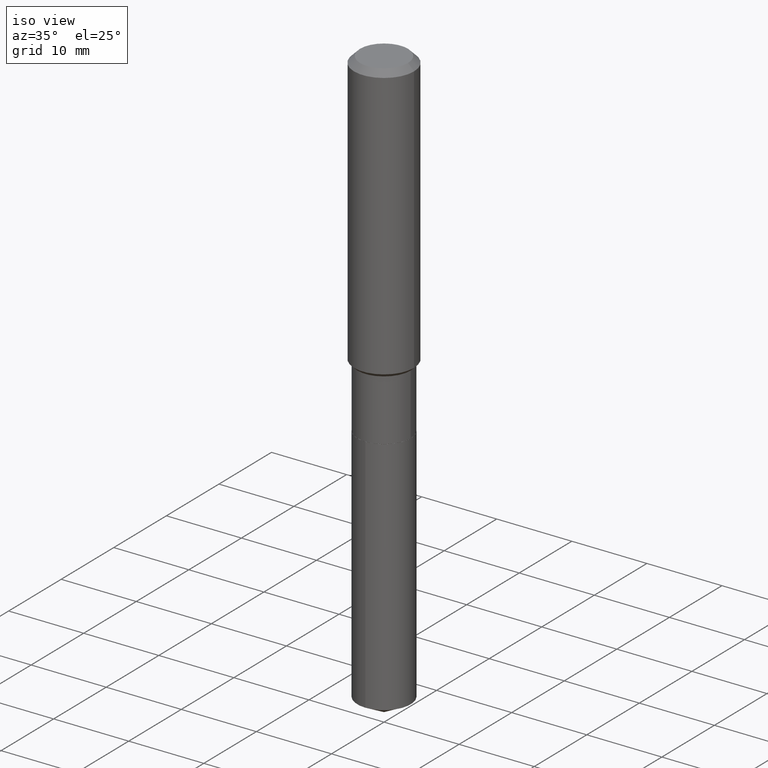
[diagram: clean part render]
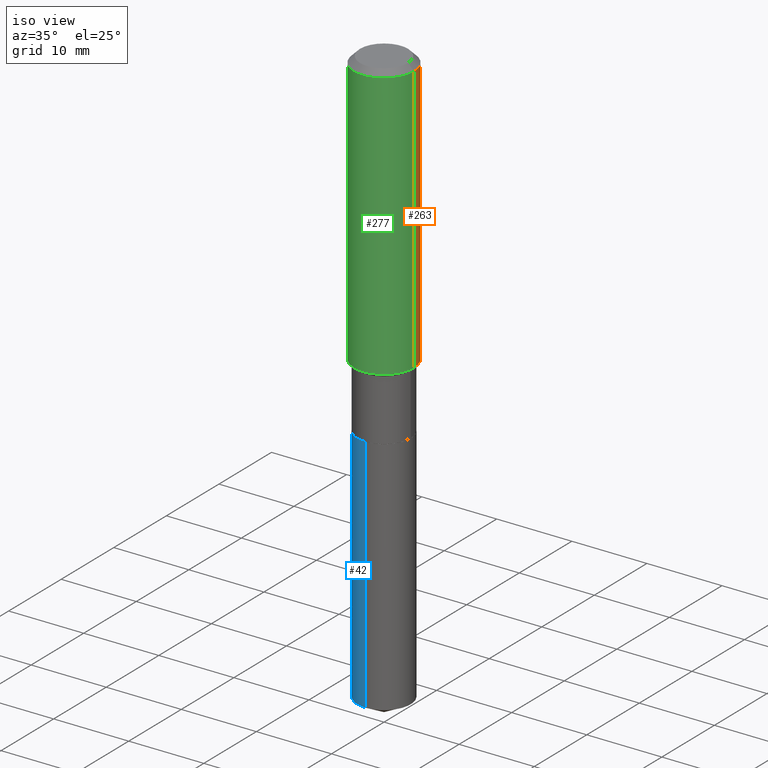
[diagram: same view with three faces highlighted in distinct colors, each labeled with its STEP entity id]
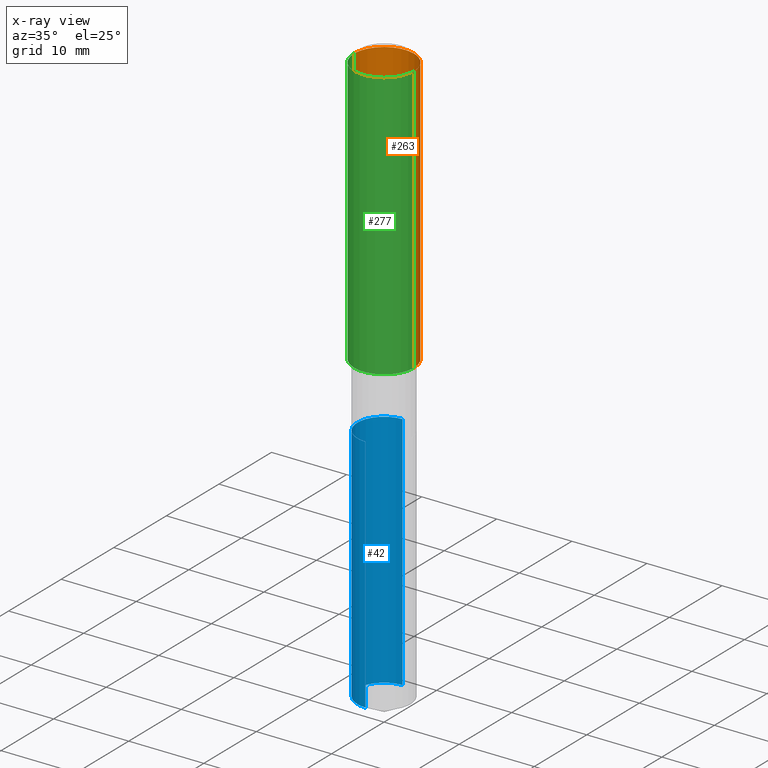
[diagram: x-ray of the same camera — body ghosted, the three highlighted faces saturated]
A machine part, iso view with three faces highlighted in distinct colors.
The next image is the same camera in x-ray (body ghosted, the three faces saturated) — at least one of them is partly hidden behind the body in this view.
Their STEP definitions:

[orange] entity #263 — the highlighted cylindrical surface (partial cylindrical patch) has radius 4.0005 mm, axis along (-0, 0, 1).
#5 = EDGE_CURVE ( 'NONE', #110, #112, #356, .T. ) ;
#10 = ORIENTED_EDGE ( 'NONE', *, *, #5, .F. ) ;
#14 = DIRECTION ( 'NONE',  ( -2.445468806185136597E-29, 3.491481338843145583E-15, 1.000000000000000000 ) ) ;
#25 = CARTESIAN_POINT ( 'NONE',  ( -0.1575000000000001676, -3.895884412225194097E-15, -1.436350000000000016 ) ) ;
#53 = VECTOR ( 'NONE', #410, 39.37007874015748143 ) ;
#60 = CARTESIAN_POINT ( 'NONE',  ( 0.000000000000000000, 0.000000000000000000, 0.000000000000000000 ) ) ;
#93 = ORIENTED_EDGE ( 'NONE', *, *, #116, .F. ) ;
#110 = VERTEX_POINT ( 'NONE', #387 ) ;
#112 = VERTEX_POINT ( 'NONE', #454 ) ;
#116 = EDGE_CURVE ( 'NONE', #112, #380, #190, .T. ) ;
#117 = DIRECTION ( 'NONE',  ( -2.445468806185136597E-29, 3.491481338843145583E-15, 1.000000000000000000 ) ) ;
#128 = DIRECTION ( 'NONE',  ( -2.445468806185136597E-29, 3.491481338843145583E-15, 1.000000000000000000 ) ) ;
#131 = CARTESIAN_POINT ( 'NONE',  ( -0.1575000000000000011, -1.443380632788297581E-15, -0.03150000000000019451 ) ) ;
#141 = CIRCLE ( 'NONE', #226, 0.1575000000000001676 ) ;
#147 = ORIENTED_EDGE ( 'NONE', *, *, #486, .T. ) ;
#156 = DIRECTION ( 'NONE',  ( 1.000000000000000000, -6.982962677686265922E-15, 0.000000000000000000 ) ) ;
#170 = ORIENTED_EDGE ( 'NONE', *, *, #441, .T. ) ;
#179 = CARTESIAN_POINT ( 'NONE',  ( 0.1575000000000000844, -1.099816621735587677E-15, 7.679978421878603638E-30 ) ) ;
#190 = CIRCLE ( 'NONE', #310, 0.1575000000000000011 ) ;
#207 = CARTESIAN_POINT ( 'NONE',  ( -0.1575000000000000844, 1.119104808822158392E-15, -7.747322767151481189E-30 ) ) ;
#226 = AXIS2_PLACEMENT_3D ( 'NONE', #271, #128, #394 ) ;
#262 = VERTEX_POINT ( 'NONE', #25 ) ;
#263 = ADVANCED_FACE ( 'NONE', ( #322 ), #352, .T. ) ;
#271 = CARTESIAN_POINT ( 'NONE',  ( 3.512549119764021199E-29, -5.014989221047352489E-15, -1.436350000000000016 ) ) ;
#279 = DIRECTION ( 'NONE',  ( 1.000000000000000000, -6.982962677686267499E-15, 4.876176775795936353E-29 ) ) ;
#281 = EDGE_LOOP ( 'NONE', ( #147, #170, #93, #10 ) ) ;
#305 = AXIS2_PLACEMENT_3D ( 'NONE', #60, #14, #279 ) ;
#310 = AXIS2_PLACEMENT_3D ( 'NONE', #339, #117, #156 ) ;
#322 = FACE_OUTER_BOUND ( 'NONE', #281, .T. ) ;
#339 = CARTESIAN_POINT ( 'NONE',  ( 7.703226739483228723E-31, -1.099816621735597661E-16, -0.03150000000000019451 ) ) ;
#349 = VECTOR ( 'NONE', #351, 39.37007874015748143 ) ;
#351 = DIRECTION ( 'NONE',  ( -2.445468806185136877E-29, 3.491481338843145188E-15, 1.000000000000000000 ) ) ;
#352 = CYLINDRICAL_SURFACE ( 'NONE', #305, 0.1575000000000000844 ) ;
#356 = LINE ( 'NONE', #179, #53 ) ;
#380 = VERTEX_POINT ( 'NONE', #131 ) ;
#387 = CARTESIAN_POINT ( 'NONE',  ( 0.1575000000000001676, -6.114805842782940758E-15, -1.436350000000000016 ) ) ;
#394 = DIRECTION ( 'NONE',  ( 1.000000000000000000, -6.982962677686267499E-15, 0.000000000000000000 ) ) ;
#395 = LINE ( 'NONE', #207, #349 ) ;
#410 = DIRECTION ( 'NONE',  ( -2.445468806185136877E-29, 3.491481338843145188E-15, 1.000000000000000000 ) ) ;
#441 = EDGE_CURVE ( 'NONE', #262, #380, #395, .T. ) ;
#454 = CARTESIAN_POINT ( 'NONE',  ( 0.1575000000000000011, -1.209798283909146741E-15, -0.03150000000000019451 ) ) ;
#486 = EDGE_CURVE ( 'NONE', #110, #262, #141, .T. ) ;

[blue] entity #42 — the highlighted cylindrical surface (edge-blend (fillet) strip) has radius 3.5497 mm, axis along (-0, 0, 1).
#9 = VERTEX_POINT ( 'NONE', #49 ) ;
#13 = LINE ( 'NONE', #167, #375 ) ;
#22 = DIRECTION ( 'NONE',  ( -6.982962677686265133E-15, -1.000000000000000000, 3.909621457837943227E-15 ) ) ;
#31 = ORIENTED_EDGE ( 'NONE', *, *, #78, .T. ) ;
#42 = ADVANCED_FACE ( 'NONE', ( #452 ), #104, .T. ) ;
#49 = CARTESIAN_POINT ( 'NONE',  ( -9.758690342066122119E-16, -0.1397500000000062026, -1.775499999999999412 ) ) ;
#72 = VERTEX_POINT ( 'NONE', #245 ) ;
#78 = EDGE_CURVE ( 'NONE', #403, #72, #265, .T. ) ;
#79 = CARTESIAN_POINT ( 'NONE',  ( 9.929834732248144530E-16, 0.1397499999999938236, -1.775500000000000522 ) ) ;
#80 = AXIS2_PLACEMENT_3D ( 'NONE', #318, #438, #478 ) ;
#88 = VECTOR ( 'NONE', #274, 39.37007874015748143 ) ;
#90 = DIRECTION ( 'NONE',  ( -2.445340770409964636E-29, 3.491664693360535195E-15, 1.000000000000000000 ) ) ;
#104 = CYLINDRICAL_SURFACE ( 'NONE', #80, 0.1397500000000000131 ) ;
#124 = CARTESIAN_POINT ( 'NONE',  ( 9.929834732248142558E-16, 0.1397499999999894382, -3.035893606925309296 ) ) ;
#167 = CARTESIAN_POINT ( 'NONE',  ( -9.758690342066122119E-16, -0.1397500000000062026, -1.775499999999999412 ) ) ;
#174 = AXIS2_PLACEMENT_3D ( 'NONE', #409, #177, #251 ) ;
#177 = DIRECTION ( 'NONE',  ( -2.445340770409964636E-29, 3.491664693360535590E-15, 1.000000000000000000 ) ) ;
#199 = EDGE_CURVE ( 'NONE', #214, #9, #252, .T. ) ;
#204 = LINE ( 'NONE', #459, #88 ) ;
#214 = VERTEX_POINT ( 'NONE', #79 ) ;
#239 = EDGE_LOOP ( 'NONE', ( #243, #31, #414, #466 ) ) ;
#242 = AXIS2_PLACEMENT_3D ( 'NONE', #361, #405, #22 ) ;
#243 = ORIENTED_EDGE ( 'NONE', *, *, #373, .F. ) ;
#245 = CARTESIAN_POINT ( 'NONE',  ( -9.758690342065818408E-16, -0.1397500000000106157, -3.035893606925307964 ) ) ;
#251 = DIRECTION ( 'NONE',  ( -6.982962677686265133E-15, -1.000000000000000000, 3.909621457837943227E-15 ) ) ;
#252 = CIRCLE ( 'NONE', #174, 0.1397500000000000131 ) ;
#265 = CIRCLE ( 'NONE', #242, 0.1397500000000000131 ) ;
#274 = DIRECTION ( 'NONE',  ( -2.445340770409964636E-29, 3.491664693360535195E-15, 1.000000000000000000 ) ) ;
#318 = CARTESIAN_POINT ( 'NONE',  ( 4.341929865381710149E-29, -6.199125117116004508E-15, -1.775499999999999856 ) ) ;
#361 = CARTESIAN_POINT ( 'NONE',  ( 7.424021739160239396E-29, -1.059999697415444211E-14, -3.035893606925308408 ) ) ;
#373 = EDGE_CURVE ( 'NONE', #403, #214, #204, .T. ) ;
#375 = VECTOR ( 'NONE', #90, 39.37007874015748143 ) ;
#403 = VERTEX_POINT ( 'NONE', #124 ) ;
#405 = DIRECTION ( 'NONE',  ( -2.445340770409964636E-29, 3.491664693360535590E-15, 1.000000000000000000 ) ) ;
#409 = CARTESIAN_POINT ( 'NONE',  ( 4.341929865381710149E-29, -6.199125117116004508E-15, -1.775499999999999856 ) ) ;
#414 = ORIENTED_EDGE ( 'NONE', *, *, #464, .T. ) ;
#438 = DIRECTION ( 'NONE',  ( -2.445340770409964636E-29, 3.491664693360535590E-15, 1.000000000000000000 ) ) ;
#452 = FACE_OUTER_BOUND ( 'NONE', #239, .T. ) ;
#459 = CARTESIAN_POINT ( 'NONE',  ( 9.929834732247832930E-16, 0.1397499999999938236, -1.775500000000000522 ) ) ;
#464 = EDGE_CURVE ( 'NONE', #72, #9, #13, .T. ) ;
#466 = ORIENTED_EDGE ( 'NONE', *, *, #199, .F. ) ;
#478 = DIRECTION ( 'NONE',  ( -6.982962677686265133E-15, -1.000000000000000000, 3.909621457837943227E-15 ) ) ;

[green] entity #277 — the highlighted cylindrical surface (partial cylindrical patch) has radius 4.0005 mm, axis along (-0, 0, 1).
#5 = EDGE_CURVE ( 'NONE', #110, #112, #356, .T. ) ;
#23 = ORIENTED_EDGE ( 'NONE', *, *, #158, .F. ) ;
#25 = CARTESIAN_POINT ( 'NONE',  ( -0.1575000000000001676, -3.895884412225194097E-15, -1.436350000000000016 ) ) ;
#37 = DIRECTION ( 'NONE',  ( -2.445468806185136597E-29, 3.491481338843145583E-15, 1.000000000000000000 ) ) ;
#43 = AXIS2_PLACEMENT_3D ( 'NONE', #195, #84, #341 ) ;
#53 = VECTOR ( 'NONE', #410, 39.37007874015748143 ) ;
#55 = ORIENTED_EDGE ( 'NONE', *, *, #5, .T. ) ;
#76 = FACE_OUTER_BOUND ( 'NONE', #254, .T. ) ;
#84 = DIRECTION ( 'NONE',  ( -2.445468806185136597E-29, 3.491481338843145583E-15, 1.000000000000000000 ) ) ;
#110 = VERTEX_POINT ( 'NONE', #387 ) ;
#112 = VERTEX_POINT ( 'NONE', #454 ) ;
#119 = AXIS2_PLACEMENT_3D ( 'NONE', #221, #402, #248 ) ;
#125 = EDGE_CURVE ( 'NONE', #262, #110, #191, .T. ) ;
#131 = CARTESIAN_POINT ( 'NONE',  ( -0.1575000000000000011, -1.443380632788297581E-15, -0.03150000000000019451 ) ) ;
#137 = ORIENTED_EDGE ( 'NONE', *, *, #125, .T. ) ;
#158 = EDGE_CURVE ( 'NONE', #380, #112, #426, .T. ) ;
#165 = AXIS2_PLACEMENT_3D ( 'NONE', #386, #37, #192 ) ;
#179 = CARTESIAN_POINT ( 'NONE',  ( 0.1575000000000000844, -1.099816621735587677E-15, 7.679978421878603638E-30 ) ) ;
#191 = CIRCLE ( 'NONE', #43, 0.1575000000000001676 ) ;
#192 = DIRECTION ( 'NONE',  ( 1.000000000000000000, -6.982962677686267499E-15, 4.876176775795936353E-29 ) ) ;
#195 = CARTESIAN_POINT ( 'NONE',  ( 3.512549119764021199E-29, -5.014989221047352489E-15, -1.436350000000000016 ) ) ;
#207 = CARTESIAN_POINT ( 'NONE',  ( -0.1575000000000000844, 1.119104808822158392E-15, -7.747322767151481189E-30 ) ) ;
#221 = CARTESIAN_POINT ( 'NONE',  ( 7.703226739483228723E-31, -1.099816621735597661E-16, -0.03150000000000019451 ) ) ;
#227 = CYLINDRICAL_SURFACE ( 'NONE', #165, 0.1575000000000000844 ) ;
#248 = DIRECTION ( 'NONE',  ( 1.000000000000000000, -6.982962677686265922E-15, 0.000000000000000000 ) ) ;
#254 = EDGE_LOOP ( 'NONE', ( #449, #137, #55, #23 ) ) ;
#262 = VERTEX_POINT ( 'NONE', #25 ) ;
#277 = ADVANCED_FACE ( 'NONE', ( #76 ), #227, .T. ) ;
#341 = DIRECTION ( 'NONE',  ( 1.000000000000000000, -6.982962677686267499E-15, 0.000000000000000000 ) ) ;
#349 = VECTOR ( 'NONE', #351, 39.37007874015748143 ) ;
#351 = DIRECTION ( 'NONE',  ( -2.445468806185136877E-29, 3.491481338843145188E-15, 1.000000000000000000 ) ) ;
#356 = LINE ( 'NONE', #179, #53 ) ;
#380 = VERTEX_POINT ( 'NONE', #131 ) ;
#386 = CARTESIAN_POINT ( 'NONE',  ( 0.000000000000000000, 0.000000000000000000, 0.000000000000000000 ) ) ;
#387 = CARTESIAN_POINT ( 'NONE',  ( 0.1575000000000001676, -6.114805842782940758E-15, -1.436350000000000016 ) ) ;
#395 = LINE ( 'NONE', #207, #349 ) ;
#402 = DIRECTION ( 'NONE',  ( -2.445468806185136597E-29, 3.491481338843145583E-15, 1.000000000000000000 ) ) ;
#410 = DIRECTION ( 'NONE',  ( -2.445468806185136877E-29, 3.491481338843145188E-15, 1.000000000000000000 ) ) ;
#426 = CIRCLE ( 'NONE', #119, 0.1575000000000000011 ) ;
#441 = EDGE_CURVE ( 'NONE', #262, #380, #395, .T. ) ;
#449 = ORIENTED_EDGE ( 'NONE', *, *, #441, .F. ) ;
#454 = CARTESIAN_POINT ( 'NONE',  ( 0.1575000000000000011, -1.209798283909146741E-15, -0.03150000000000019451 ) ) ;